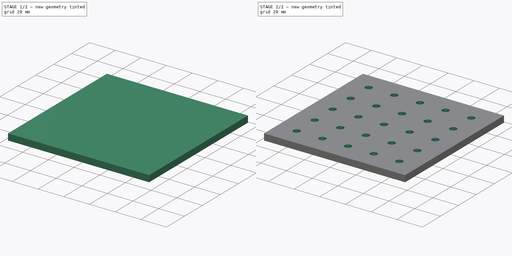
[diagram: build sequence overview — one tinted view per stage of 2, left to right]
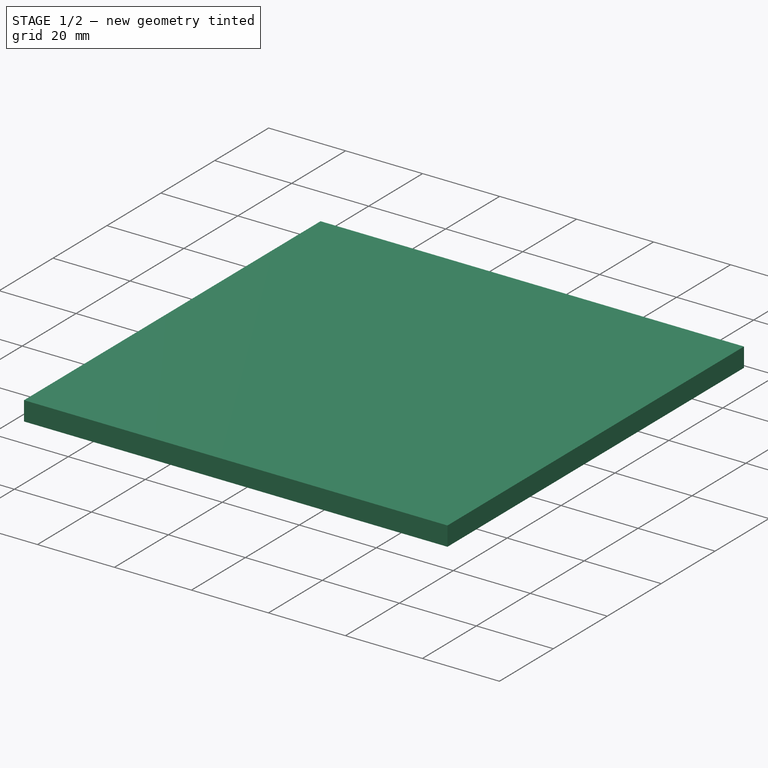
[diagram: stage 1 of 2 — iso view after this stage's code; geometry added in this stage tinted green]
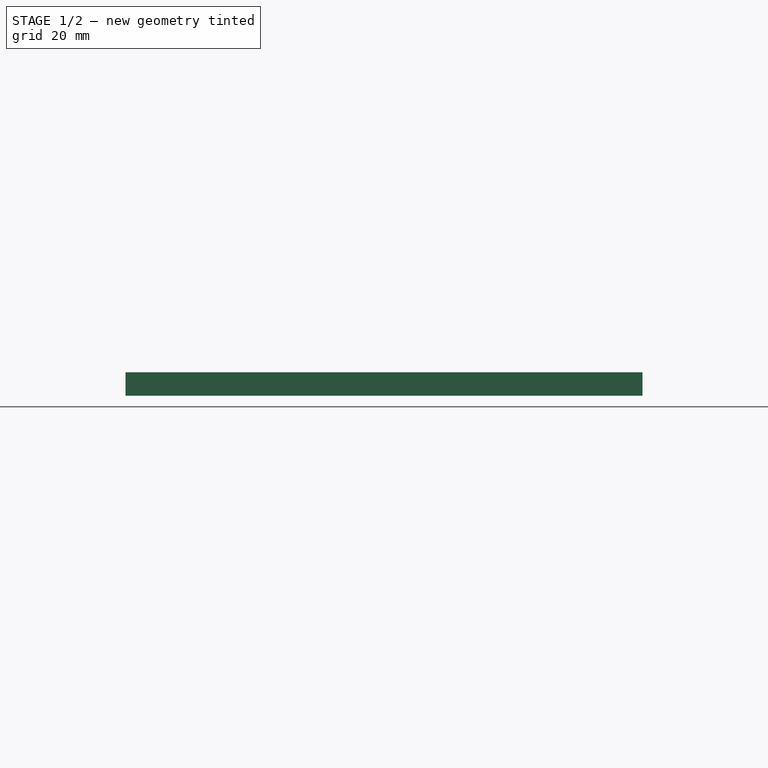
[diagram: stage 1 of 2 — front view after this stage's code; geometry added in this stage tinted green]
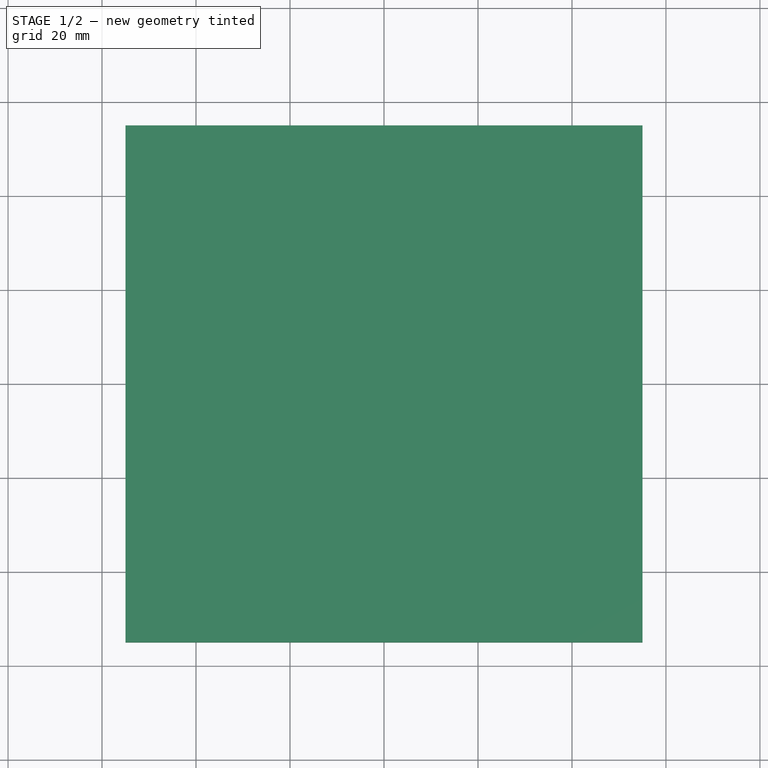
[diagram: stage 1 of 2 — top view after this stage's code; geometry added in this stage tinted green]
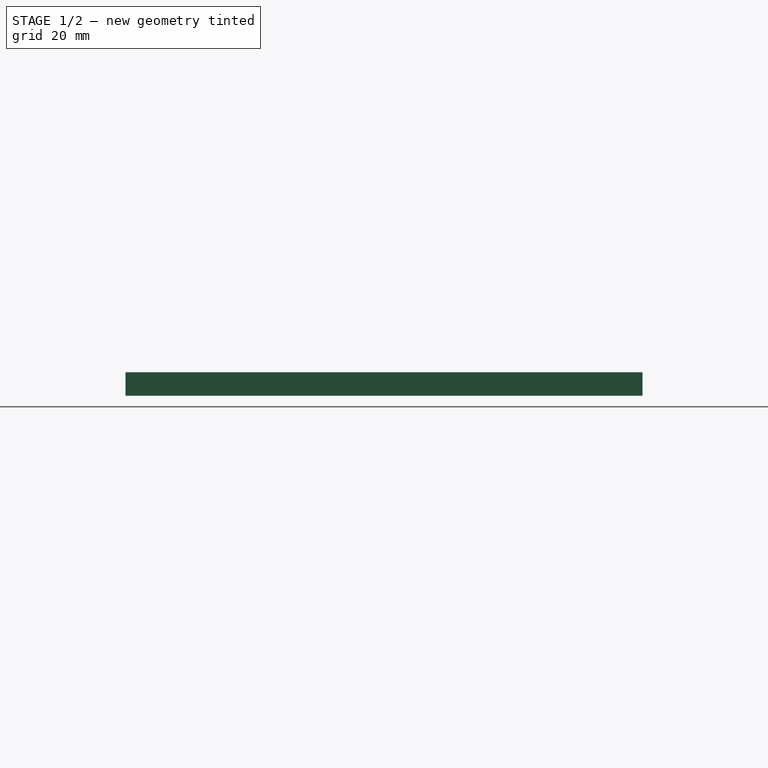
[diagram: stage 1 of 2 — right view after this stage's code; geometry added in this stage tinted green]
FCSTD DOCUMENT  (FreeCAD 0.21R33771 (Git))
Label: BarPlate-0
License: All rights reserved
LicenseURL: https://en.wikipedia.org/wiki/All_rights_reserved
objects: Sketcher::SketchObject×2, PartDesign::Pad×1, PartDesign::Pocket×1, PartDesign::Body×1
note: 7 computed .brp shape members not serialized (recipe doc carries the construction recipe); baked Part::Feature solids carry a one-line shape summary decoded from their .brp

FEATURE [Sketcher::SketchObject] Sketch
  FullyConstrained = true
  MapMode = 5
  Support = -> [XY_Plane]
  sketch-geometry (4):
    g0: LineSegment StartX=-55 StartY=-55 StartZ=0 EndX=55 EndY=-55 EndZ=0
    g1: LineSegment StartX=55 StartY=-55 StartZ=0 EndX=55 EndY=55 EndZ=0
    g2: LineSegment StartX=55 StartY=55 StartZ=0 EndX=-55 EndY=55 EndZ=0
    g3: LineSegment StartX=-55 StartY=55 StartZ=0 EndX=-55 EndY=-55 EndZ=0
  constraints (12):
    c: Coincident(g0,g1)
    c: Coincident(g1,g2)
    c: Coincident(g2,g3)
    c: Coincident(g3,g0)
    c: Horizontal(g0)
    c: Horizontal(g2)
    c: Vertical(g1)
    c: Vertical(g3)
    c: DistanceX(g2,g-1) = 55
    c: DistanceY(g-1,g2) = 55
    c: DistanceY(g0,g1) = 110
    c: DistanceX(g0,g0) = 110
FEATURE [PartDesign::Pad] Pad
  Direction = (0,0,1)
  Length = 5
  Length2 = 10
  Profile = -> Sketch
  ReferenceAxis = -> Sketch [N_Axis]
  Type = 0
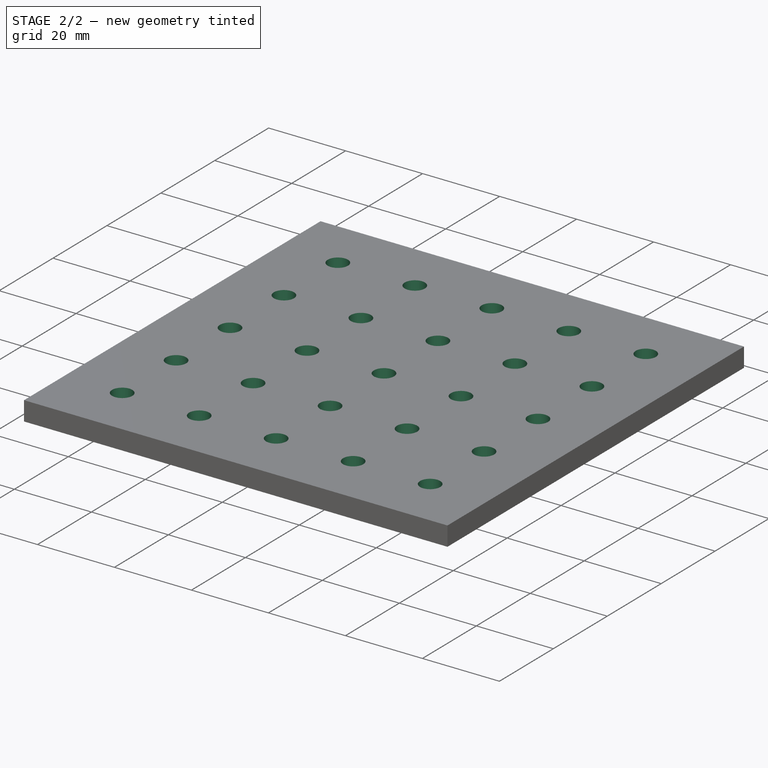
[diagram: stage 2 of 2 — iso view after this stage's code; geometry added in this stage tinted green]
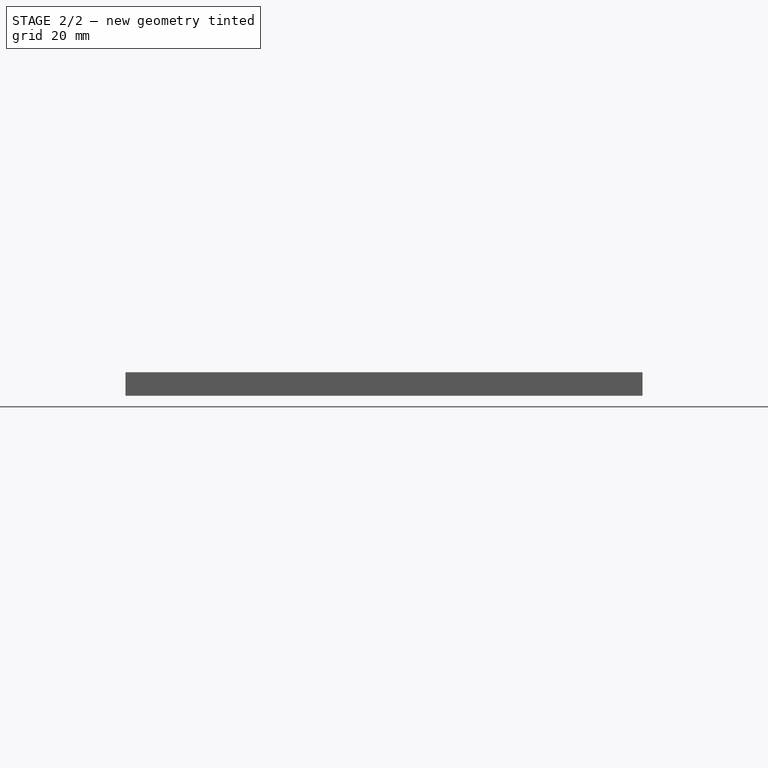
[diagram: stage 2 of 2 — front view after this stage's code; geometry added in this stage tinted green]
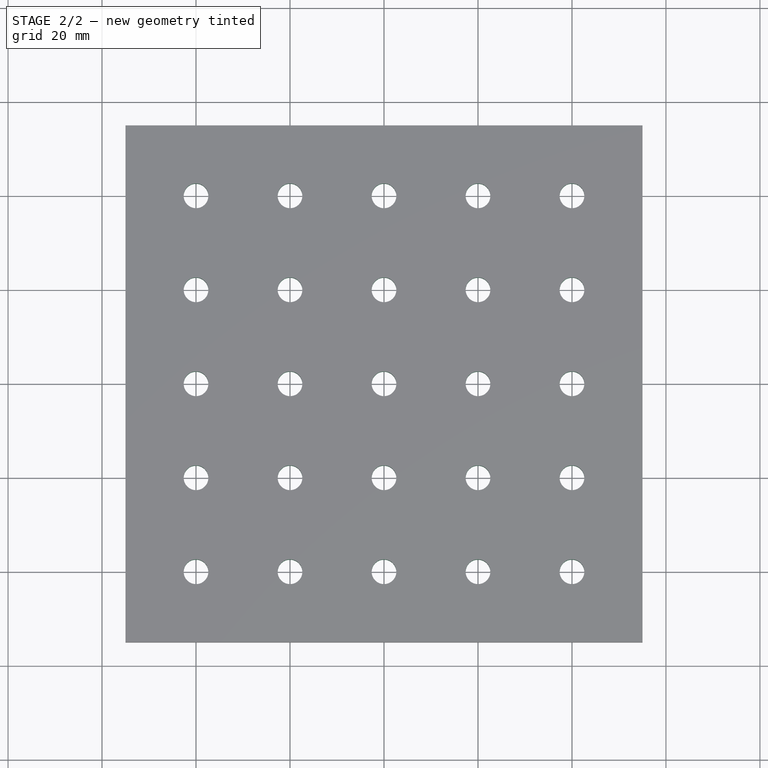
[diagram: stage 2 of 2 — top view after this stage's code; geometry added in this stage tinted green]
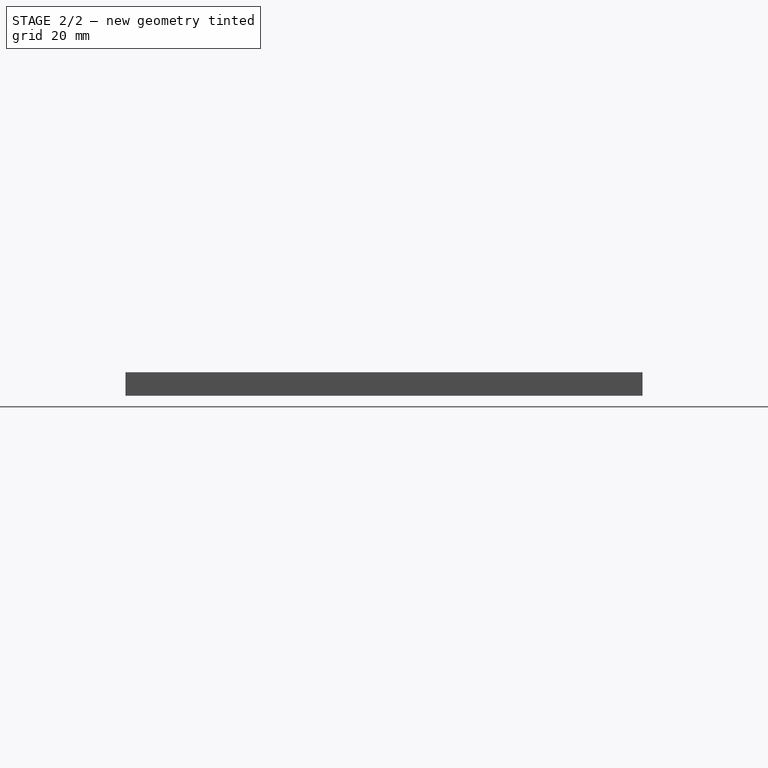
[diagram: stage 2 of 2 — right view after this stage's code; geometry added in this stage tinted green]
FEATURE [Sketcher::SketchObject] Sketch001
  FullyConstrained = true
  MapMode = 5
  Placement = pos=(0,0,5) rot=(0,0,1;0rad)
  Support = -> [Pad]
  sketch-geometry (25):
    g0: Circle CenterX=0 CenterY=0 CenterZ=0 NormalX=0 NormalY=0 NormalZ=1 AngleXU=0 Radius=2.625
    g1: Circle CenterX=20 CenterY=0 CenterZ=0 NormalX=0 NormalY=0 NormalZ=1 AngleXU=0 Radius=2.625
    g2: Circle CenterX=40 CenterY=0 CenterZ=0 NormalX=0 NormalY=0 NormalZ=1 AngleXU=0 Radius=2.625
    g3: Circle CenterX=-20 CenterY=0 CenterZ=0 NormalX=0 NormalY=0 NormalZ=1 AngleXU=0 Radius=2.625
    g4: Circle CenterX=-40 CenterY=0 CenterZ=0 NormalX=0 NormalY=0 NormalZ=1 AngleXU=0 Radius=2.625
    g5: Circle CenterX=-40 CenterY=20 CenterZ=0 NormalX=0 NormalY=0 NormalZ=1 AngleXU=0 Radius=2.625
    g6: Circle CenterX=-40 CenterY=40 CenterZ=0 NormalX=0 NormalY=0 NormalZ=1 AngleXU=0 Radius=2.625
    g7: Circle CenterX=-20 CenterY=20 CenterZ=0 NormalX=0 NormalY=0 NormalZ=1 AngleXU=0 Radius=2.625
    g8: Circle CenterX=-20 CenterY=40 CenterZ=0 NormalX=0 NormalY=0 NormalZ=1 AngleXU=0 Radius=2.625
    g9: Circle CenterX=0 CenterY=20 CenterZ=0 NormalX=0 NormalY=0 NormalZ=1 AngleXU=0 Radius=2.625
    g10: Circle CenterX=0 CenterY=40 CenterZ=0 NormalX=0 NormalY=0 NormalZ=1 AngleXU=0 Radius=2.625
    g11: Circle CenterX=20 CenterY=20 CenterZ=0 NormalX=0 NormalY=0 NormalZ=1 AngleXU=0 Radius=2.625
    g12: Circle CenterX=20 CenterY=40 CenterZ=0 NormalX=0 NormalY=0 NormalZ=1 AngleXU=0 Radius=2.625
    g13: Circle CenterX=40 CenterY=20 CenterZ=0 NormalX=0 NormalY=0 NormalZ=1 AngleXU=0 Radius=2.625
    g14: Circle CenterX=40 CenterY=40 CenterZ=0 NormalX=0 NormalY=0 NormalZ=1 AngleXU=0 Radius=2.625
    g15: Circle CenterX=0 CenterY=-20 CenterZ=0 NormalX=0 NormalY=0 NormalZ=1 AngleXU=0 Radius=2.625
    g16: Circle CenterX=0 CenterY=-40 CenterZ=0 NormalX=0 NormalY=0 NormalZ=1 AngleXU=0 Radius=2.625
    g17: Circle CenterX=20 CenterY=-20 CenterZ=0 NormalX=0 NormalY=0 NormalZ=1 AngleXU=0 Radius=2.625
    g18: Circle CenterX=20 CenterY=-40 CenterZ=0 NormalX=0 NormalY=0 NormalZ=1 AngleXU=0 Radius=2.625
    g19: Circle CenterX=40 CenterY=-20 CenterZ=0 NormalX=0 NormalY=0 NormalZ=1 AngleXU=0 Radius=2.625
    g20: Circle CenterX=40 CenterY=-40 CenterZ=0 NormalX=0 NormalY=0 NormalZ=1 AngleXU=0 Radius=2.625
    g21: Circle CenterX=-20 CenterY=-40 CenterZ=0 NormalX=0 NormalY=0 NormalZ=1 AngleXU=0 Radius=2.625
    g22: Circle CenterX=-20 CenterY=-20 CenterZ=0 NormalX=0 NormalY=0 NormalZ=1 AngleXU=0 Radius=2.625
    g23: Circle CenterX=-40 CenterY=-20 CenterZ=0 NormalX=0 NormalY=0 NormalZ=1 AngleXU=0 Radius=2.625
    g24: Circle CenterX=-40 CenterY=-40 CenterZ=0 NormalX=0 NormalY=0 NormalZ=1 AngleXU=0 Radius=2.625
  constraints (74):
    c: Coincident(g0,g-1)
    c: PointOnObject(g1,g-1)
    c: PointOnObject(g2,g-1)
    c: PointOnObject(g3,g-1)
    c: PointOnObject(g4,g-1)
    c: PointOnObject(g9,g-2)
    c: PointOnObject(g10,g-2)
    c: PointOnObject(g15,g-2)
    c: PointOnObject(g16,g-2)
    c: Diameter(g6) = 5.25
    c: Diameter(g5) = 5.25
    c: Diameter(g4) = 5.25
    c: Diameter(g23) = 5.25
    c: Diameter(g24) = 5.25
    c: Diameter(g21) = 5.25
    c: Diameter(g22) = 5.25
    c: Diameter(g3) = 5.25
    c: Diameter(g16) = 5.25
    c: Diameter(g15) = 5.25
    c: Diameter(g0) = 5.25
    c: Diameter(g18) = 5.25
    c: Diameter(g17) = 5.25
    c: Diameter(g19) = 5.25
    c: Diameter(g20) = 5.25
    c: Diameter(g2) = 5.25
    c: Diameter(g1) = 5.25
    c: Diameter(g11) = 5.25
    c: Diameter(g13) = 5.25
    c: Diameter(g9) = 5.25
    c: Diameter(g7) = 5.25
    c: Diameter(g8) = 5.25
    c: Diameter(g10) = 5.25
    c: Diameter(g12) = 5.25
    c: Diameter(g14) = 5.25
    c: DistanceX(g3,g0) = 20
    c: DistanceX(g4,g3) = 20
    c: DistanceX(g0,g1) = 20
    c: DistanceX(g1,g2) = 20
    c: DistanceX(g4,g5) = 0
    c: DistanceX(g5,g6) = 0
    c: DistanceX(g3,g7) = 0
    c: DistanceX(g7,g8) = 0
    c: DistanceX(g11,g1) = 0
    c: DistanceX(g12,g11) = 0
    c: DistanceX(g13,g2) = 0
    c: DistanceX(g14,g13) = 0
    c: DistanceX(g19,g2) = 0
    c: DistanceX(g20,g19) = 0
    c: DistanceX(g17,g18) = 0
    c: DistanceX(g17,g1) = 0
    c: DistanceX(g3,g22) = 0
    c: DistanceX(g22,g21) = 0
    c: DistanceX(g24,g23) = 0
    c: DistanceX(g4,g23) = 0
    c: DistanceY(g23,g4) = 20
    c: DistanceY(g24,g23) = 20
    c: DistanceY(g24,g21) = 0
    c: DistanceY(g21,g16) = 0
    c: DistanceY(g16,g18) = 0
    c: DistanceY(g18,g20) = 0
    c: DistanceY(g23,g22) = 0
    c: DistanceY(g15,g17) = 0
    c: DistanceY(g17,g19) = 0
    c: DistanceY(g22,g15) = 0
    c: DistanceY(g4,g5) = 20
    c: DistanceY(g5,g6) = 20
    c: DistanceY(g7,g5) = 0
    c: DistanceY(g9,g7) = 0
    c: DistanceY(g11,g9) = 0
    c: DistanceY(g13,g11) = 0
    c: DistanceY(g8,g6) = 0
    c: DistanceY(g10,g8) = 0
    c: DistanceY(g12,g10) = 0
    c: DistanceY(g14,g12) = 0
FEATURE [PartDesign::Pocket] Pocket
  BaseFeature = -> Pad
  Direction = (0,0,-1)
  Length = 5
  Length2 = 5
  Profile = -> Sketch001
  ReferenceAxis = -> Sketch001 [N_Axis]
  Type = 0
FEATURE [PartDesign::Body] Body
  Group = -> [Sketch,Pad,Sketch001,Pocket]
  Origin = -> Origin
  Tip = -> Pocket
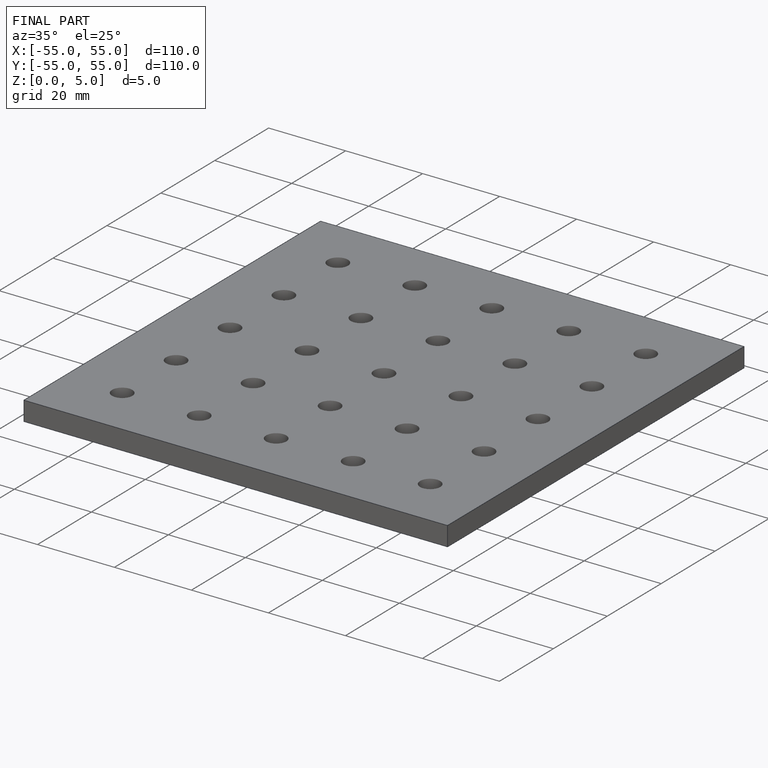
[diagram: finished part — iso view with bounding-box wireframe]
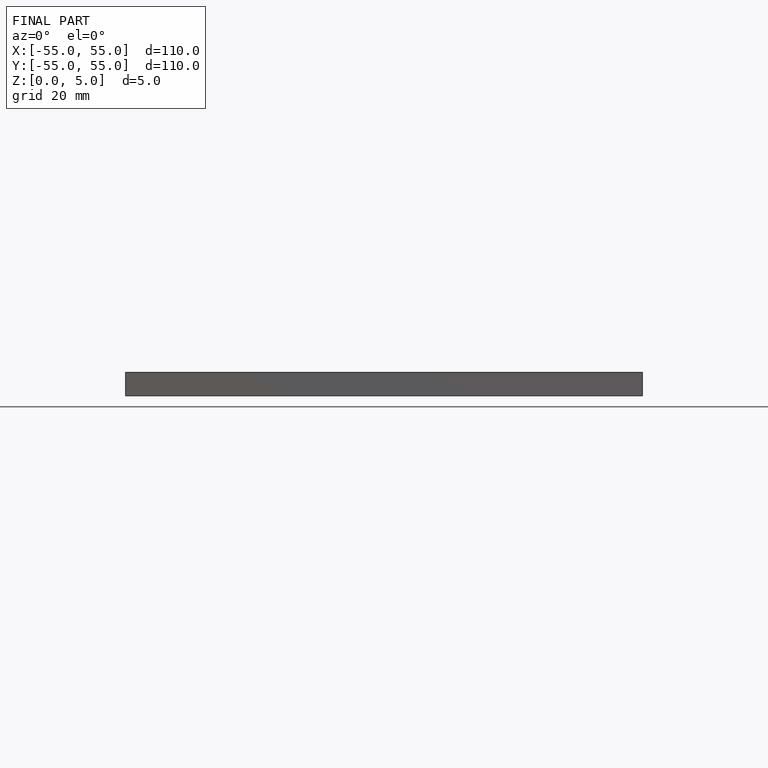
[diagram: finished part — front view with bounding-box wireframe]
